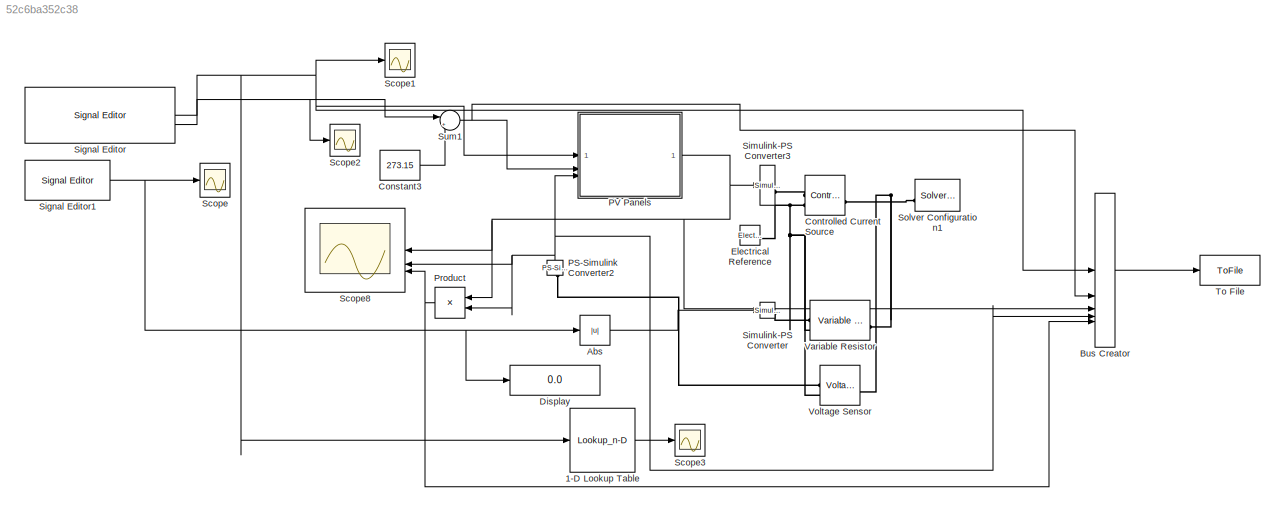
MODEL slx_52c6ba352c38
KIND model
CONFIG AbsTol = auto
CONFIG EnableMultiTasking = off
CONFIG FixedStep = auto
CONFIG MaxStep = auto
CONFIG MinStep = auto
CONFIG RelTol = 1e-3
CONFIG SampleTimeConstraint = Unconstrained
CONFIG SolverName = VariableStepAuto
CONFIG StartTime = 0.0
CONFIG StopTime = 200
BLOCK [Lookup_n-D] 1-D Lookup Table
  BreakpointsForDimension1 = [DataOutS4.Irrad]
  Commented = on
  InputPortMap = u0
  InternalRulePriority = Speed
  NumberOfTableDimensions = 1
  RndMeth = Simplest
  Table = [DataOutS4.Resistance]
BLOCK [Abs] Abs
  SaturateOnIntegerOverflow = off
BLOCK [BusCreator] Bus Creator
  DisplayOption = bar
  InheritFromInputs = on
  Inputs = 5
BLOCK [Constant] Constant3
  Value = 273.15
BLOCK [Reference] Controlled Current Source  REF=fl_lib/Electrical/Electrical Sources/Controlled Current
Source
  SourceBlock = fl_lib/Electrical/Electrical Sources/Controlled Current\nSource
  SourceType = Controlled Current\nSource
BLOCK [Display] Display
  Decimation = 1
BLOCK [Reference] Electrical Reference  REF=fl_lib/Electrical/Electrical Elements/Electrical Reference
  LibrarySourceBlock = ee_lib/Connectors &\nReferences/Electrical Reference
  SourceBlock = fl_lib/Electrical/Electrical Elements/Electrical Reference
  SourceType = Electrical Reference
BLOCK [Reference] PS-Simulink Converter2  REF=nesl_utility/PS-Simulink
Converter
  NameLocation = right
  SourceBlock = nesl_utility/PS-Simulink\nConverter
  SourceType = PS-Simulink\nConverter
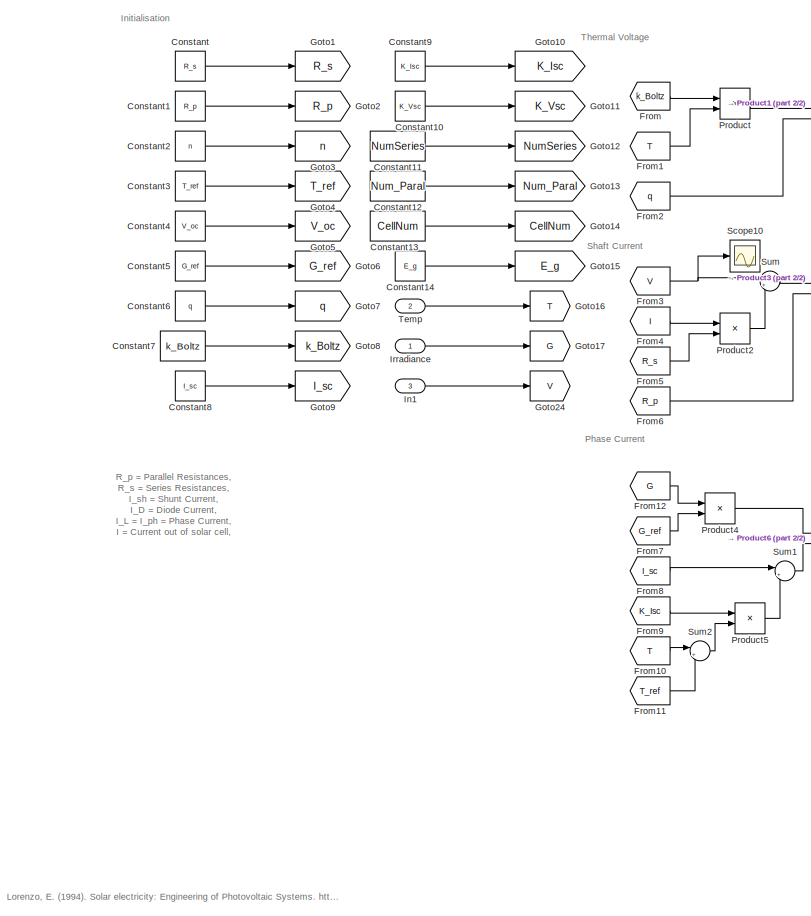
[diagram: PV Panels - part 1/2, left side, full height]
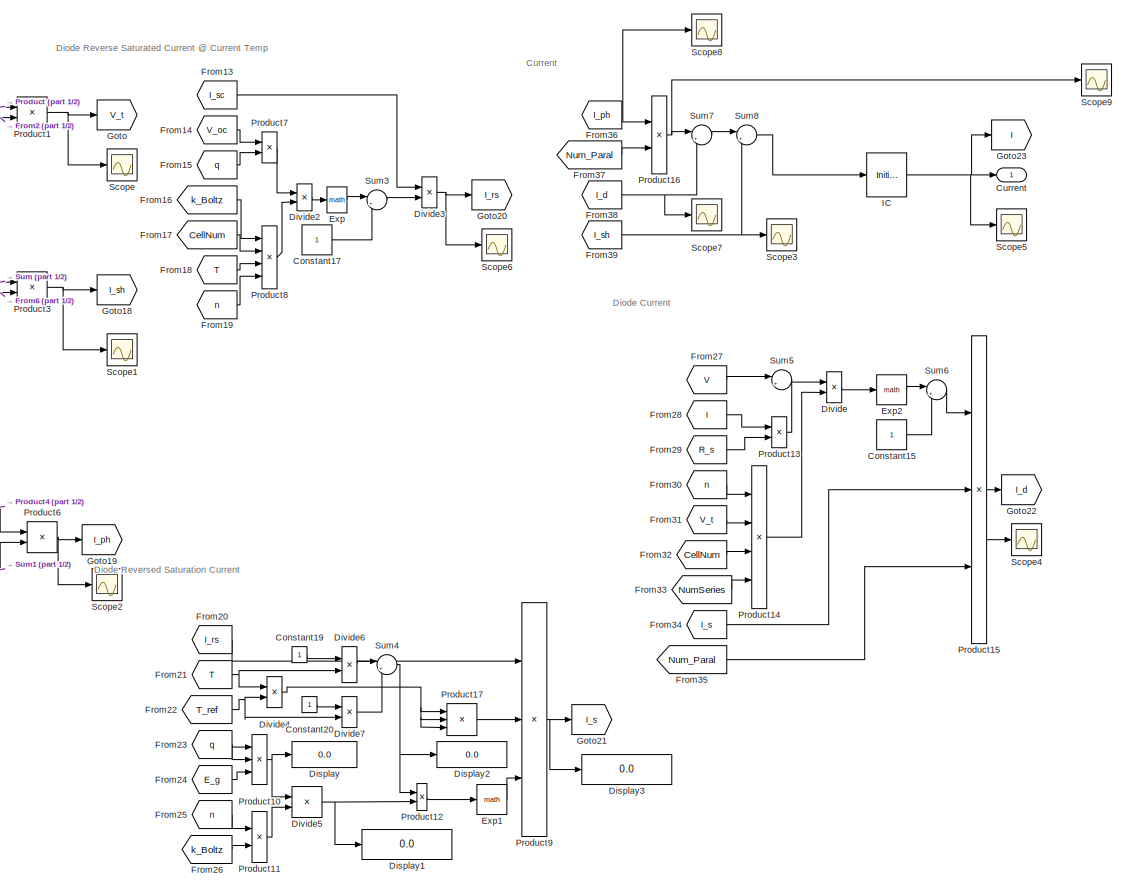
[diagram: PV Panels - part 2/2, right side, full height]
BLOCK [SubSystem] PV Panels
BLOCK [Constant] PV Panels/Constant
  Value = R_s
BLOCK [Constant] PV Panels/Constant1
  Value = R_p
BLOCK [Constant] PV Panels/Constant10
  Value = K_Vsc
BLOCK [Constant] PV Panels/Constant11
  Value = NumSeries
BLOCK [Constant] PV Panels/Constant12
  Value = Num_Paral
BLOCK [Constant] PV Panels/Constant13
  Value = CellNum
BLOCK [Constant] PV Panels/Constant14
  Value = E_g
BLOCK [Constant] PV Panels/Constant15
BLOCK [Constant] PV Panels/Constant17
BLOCK [Constant] PV Panels/Constant19
BLOCK [Constant] PV Panels/Constant2
  Value = n
BLOCK [Constant] PV Panels/Constant20
BLOCK [Constant] PV Panels/Constant3
  Value = T_ref
BLOCK [Constant] PV Panels/Constant4
  Value = V_oc
BLOCK [Constant] PV Panels/Constant5
  Value = G_ref
BLOCK [Constant] PV Panels/Constant6
  Value = q
BLOCK [Constant] PV Panels/Constant7
  Value = k_Boltz
BLOCK [Constant] PV Panels/Constant8
  Value = I_sc
BLOCK [Constant] PV Panels/Constant9
  Value = K_Isc
BLOCK [Outport] PV Panels/Current
BLOCK [Display] PV Panels/Display
  Decimation = 1
BLOCK [Display] PV Panels/Display1
  Decimation = 1
BLOCK [Display] PV Panels/Display2
  Decimation = 1
BLOCK [Display] PV Panels/Display3
  Decimation = 1
BLOCK [Product] PV Panels/Divide
  Inputs = */
BLOCK [Product] PV Panels/Divide2
  Inputs = */
BLOCK [Product] PV Panels/Divide3
  Inputs = */
BLOCK [Product] PV Panels/Divide4
  Inputs = */
BLOCK [Product] PV Panels/Divide5
  Inputs = */
BLOCK [Product] PV Panels/Divide6
  Inputs = */
BLOCK [Product] PV Panels/Divide7
  Inputs = */
BLOCK [Math] PV Panels/Exp
BLOCK [Math] PV Panels/Exp1
BLOCK [Math] PV Panels/Exp2
BLOCK [From] PV Panels/From
  GotoTag = k_Boltz
BLOCK [From] PV Panels/From1
  GotoTag = T
BLOCK [From] PV Panels/From10
  GotoTag = T
BLOCK [From] PV Panels/From11
  GotoTag = T_ref
BLOCK [From] PV Panels/From12
  GotoTag = G
BLOCK [From] PV Panels/From13
  GotoTag = I_sc
BLOCK [From] PV Panels/From14
  GotoTag = V_oc
BLOCK [From] PV Panels/From15
  GotoTag = q
BLOCK [From] PV Panels/From16
  GotoTag = k_Boltz
BLOCK [From] PV Panels/From17
  GotoTag = CellNum
BLOCK [From] PV Panels/From18
  GotoTag = T
BLOCK [From] PV Panels/From19
  GotoTag = n
BLOCK [From] PV Panels/From2
  GotoTag = q
BLOCK [From] PV Panels/From20
  GotoTag = I_rs
BLOCK [From] PV Panels/From21
  GotoTag = T
BLOCK [From] PV Panels/From22
  GotoTag = T_ref
BLOCK [From] PV Panels/From23
  GotoTag = q
BLOCK [From] PV Panels/From24
  GotoTag = E_g
BLOCK [From] PV Panels/From25
  GotoTag = n
BLOCK [From] PV Panels/From26
  GotoTag = k_Boltz
BLOCK [From] PV Panels/From27
  GotoTag = V
BLOCK [From] PV Panels/From28
  GotoTag = I
BLOCK [From] PV Panels/From29
  GotoTag = R_s
BLOCK [From] PV Panels/From3
  GotoTag = V
BLOCK [From] PV Panels/From30
  GotoTag = n
BLOCK [From] PV Panels/From31
  GotoTag = V_t
BLOCK [From] PV Panels/From32
  GotoTag = CellNum
BLOCK [From] PV Panels/From33
  GotoTag = NumSeries
BLOCK [From] PV Panels/From34
  GotoTag = I_s
BLOCK [From] PV Panels/From35
  GotoTag = Num_Paral
BLOCK [From] PV Panels/From36
  GotoTag = I_ph
BLOCK [From] PV Panels/From37
  GotoTag = Num_Paral
BLOCK [From] PV Panels/From38
  GotoTag = I_d
BLOCK [From] PV Panels/From39
  GotoTag = I_sh
BLOCK [From] PV Panels/From4
  GotoTag = I
BLOCK [From] PV Panels/From5
  GotoTag = R_s
BLOCK [From] PV Panels/From6
  GotoTag = R_p
BLOCK [From] PV Panels/From7
  GotoTag = G_ref
BLOCK [From] PV Panels/From8
  GotoTag = I_sc
BLOCK [From] PV Panels/From9
  GotoTag = K_Isc
BLOCK [Goto] PV Panels/Goto
  GotoTag = V_t
BLOCK [Goto] PV Panels/Goto1
  GotoTag = R_s
BLOCK [Goto] PV Panels/Goto10
  GotoTag = K_Isc
BLOCK [Goto] PV Panels/Goto11
  GotoTag = K_Vsc
BLOCK [Goto] PV Panels/Goto12
  GotoTag = NumSeries
BLOCK [Goto] PV Panels/Goto13
  GotoTag = Num_Paral
BLOCK [Goto] PV Panels/Goto14
  GotoTag = CellNum
BLOCK [Goto] PV Panels/Goto15
  GotoTag = E_g
BLOCK [Goto] PV Panels/Goto16
  GotoTag = T
BLOCK [Goto] PV Panels/Goto17
  GotoTag = G
BLOCK [Goto] PV Panels/Goto18
  GotoTag = I_sh
BLOCK [Goto] PV Panels/Goto19
  GotoTag = I_ph
BLOCK [Goto] PV Panels/Goto2
  GotoTag = R_p
BLOCK [Goto] PV Panels/Goto20
  GotoTag = I_rs
BLOCK [Goto] PV Panels/Goto21
  GotoTag = I_s
BLOCK [Goto] PV Panels/Goto22
  GotoTag = I_d
BLOCK [Goto] PV Panels/Goto23
  GotoTag = I
BLOCK [Goto] PV Panels/Goto24
  GotoTag = V
BLOCK [Goto] PV Panels/Goto3
  GotoTag = n
BLOCK [Goto] PV Panels/Goto4
  GotoTag = T_ref
BLOCK [Goto] PV Panels/Goto5
  GotoTag = V_oc
BLOCK [Goto] PV Panels/Goto6
  GotoTag = G_ref
BLOCK [Goto] PV Panels/Goto7
  GotoTag = q
BLOCK [Goto] PV Panels/Goto8
  GotoTag = k_Boltz
BLOCK [Goto] PV Panels/Goto9
  GotoTag = I_sc
BLOCK [InitialCondition] PV Panels/IC
  Value = 0
BLOCK [Inport] PV Panels/In1
  Port = 3
BLOCK [Inport] PV Panels/Irradiance
BLOCK [Product] PV Panels/Product
BLOCK [Product] PV Panels/Product1
  Inputs = */
BLOCK [Product] PV Panels/Product10
  Inputs = 3
BLOCK [Product] PV Panels/Product11
BLOCK [Product] PV Panels/Product12
BLOCK [Product] PV Panels/Product13
BLOCK [Product] PV Panels/Product14
  Inputs = 4
BLOCK [Product] PV Panels/Product15
  Inputs = 3
BLOCK [Product] PV Panels/Product16
BLOCK [Product] PV Panels/Product17
  Inputs = 3
BLOCK [Product] PV Panels/Product2
BLOCK [Product] PV Panels/Product3
  Inputs = */
BLOCK [Product] PV Panels/Product4
  Inputs = */
BLOCK [Product] PV Panels/Product5
BLOCK [Product] PV Panels/Product6
BLOCK [Product] PV Panels/Product7
BLOCK [Product] PV Panels/Product8
  Inputs = 4
BLOCK [Product] PV Panels/Product9
  Inputs = 3
BLOCK [Scope] PV Panels/Scope
  Floating = off
  NumInputPorts = 1
  ScopeSpecificationString = Simulink.scopes.TimeScopeBlockCfg('CurrentConfiguration', extmgr.ConfigurationSet(extmgr.Configuration('Core','General UI',true),extmgr.Configuration('Core','Source UI',true),extmgr.Configuration('Sources','WiredSimulink',true,'DataLoggingVariableName','ScopeData1'),extmgr.Configuration('Visuals','Time Domain',true,'SerializedDisplays',{struct('MinYLimReal','0.01569','MaxYLimReal','0.03569','YLabe...<+1489ch>
BLOCK [Scope] PV Panels/Scope1
  Floating = off
  NumInputPorts = 1
  ScopeSpecificationString = Simulink.scopes.TimeScopeBlockCfg('CurrentConfiguration', extmgr.ConfigurationSet(extmgr.Configuration('Core','General UI',true),extmgr.Configuration('Core','Source UI',true),extmgr.Configuration('Sources','WiredSimulink',true,'DataLoggingVariableName','ScopeData2'),extmgr.Configuration('Visuals','Time Domain',true,'SerializedDisplays',{struct('MinYLimReal','-0.05053','MaxYLimReal','0.51517','YLab...<+1456ch>
BLOCK [Scope] PV Panels/Scope10
  Floating = off
  NumInputPorts = 1
  ScopeSpecificationString = Simulink.scopes.TimeScopeBlockCfg('CurrentConfiguration', extmgr.ConfigurationSet(extmgr.Configuration('Core','General UI',true),extmgr.Configuration('Core','Source UI',true),extmgr.Configuration('Sources','WiredSimulink',true,'DataLoggingVariableName','ScopeData5'),extmgr.Configuration('Visuals','Time Domain',true,'SerializedDisplays',{struct('MinYLimReal','-4.25103','MaxYLimReal','38.2593','YLab...<+1480ch>
BLOCK [Scope] PV Panels/Scope2
  Floating = off
  NumInputPorts = 1
  ScopeSpecificationString = Simulink.scopes.TimeScopeBlockCfg('CurrentConfiguration', extmgr.ConfigurationSet(extmgr.Configuration('Core','General UI',true),extmgr.Configuration('Core','Source UI',true),extmgr.Configuration('Sources','WiredSimulink',true,'DataLoggingVariableName','ScopeData3'),extmgr.Configuration('Visuals','Time Domain',true,'SerializedDisplays',{struct('MinYLimReal','2.284','MaxYLimReal','4.284','YLabelRea...<+1473ch>
BLOCK [Scope] PV Panels/Scope3
  Floating = off
  NumInputPorts = 1
  ScopeSpecificationString = Simulink.scopes.TimeScopeBlockCfg('CurrentConfiguration', extmgr.ConfigurationSet(extmgr.Configuration('Core','General UI',true),extmgr.Configuration('Core','Source UI',true),extmgr.Configuration('Sources','WiredSimulink',true,'DataLoggingVariableName','ScopeData1'),extmgr.Configuration('Visuals','Time Domain',true,'SerializedDisplays',{struct('MinYLimReal','-0.03417','MaxYLimReal','0.54556','YLab...<+1486ch>
BLOCK [Scope] PV Panels/Scope4
  Floating = off
  NumInputPorts = 1
  ScopeSpecificationString = Simulink.scopes.TimeScopeBlockCfg('CurrentConfiguration', extmgr.ConfigurationSet(extmgr.Configuration('Core','General UI',true),extmgr.Configuration('Core','Source UI',true),extmgr.Configuration('Sources','WiredSimulink',true,'DataLoggingVariableName','ScopeData5'),extmgr.Configuration('Visuals','Time Domain',true),extmgr.Configuration('Tools','Plot Navigation',true),extmgr.Configuration('Tools',...<+40ch>
BLOCK [Scope] PV Panels/Scope5
  Floating = off
  NumInputPorts = 1
  ScopeSpecificationString = Simulink.scopes.TimeScopeBlockCfg('CurrentConfiguration', extmgr.ConfigurationSet(extmgr.Configuration('Core','General UI',true),extmgr.Configuration('Core','Source UI',true),extmgr.Configuration('Sources','WiredSimulink',true,'DataLoggingVariableName','ScopeData6'),extmgr.Configuration('Visuals','Time Domain',true,'SerializedDisplays',{struct('MinYLimReal','-0.05512','MaxYLimReal','0.9245','YLabe...<+1476ch>
BLOCK [Scope] PV Panels/Scope6
  Floating = off
  NumInputPorts = 1
  ScopeSpecificationString = Simulink.scopes.TimeScopeBlockCfg('CurrentConfiguration', extmgr.ConfigurationSet(extmgr.Configuration('Core','General UI',true),extmgr.Configuration('Core','Source UI',true),extmgr.Configuration('Sources','WiredSimulink',true,'DataLoggingVariableName','ScopeData7'),extmgr.Configuration('Visuals','Time Domain',true,'SerializedDisplays',{struct('MinYLimReal','0.00000000000000084','MaxYLimReal','0.0...<+1584ch>
BLOCK [Scope] PV Panels/Scope7
  Floating = off
  NumInputPorts = 1
  ScopeSpecificationString = Simulink.scopes.TimeScopeBlockCfg('CurrentConfiguration', extmgr.ConfigurationSet(extmgr.Configuration('Core','General UI',true),extmgr.Configuration('Core','Source UI',true),extmgr.Configuration('Sources','WiredSimulink',true,'DataLoggingVariableName','ScopeData2'),extmgr.Configuration('Visuals','Time Domain',true,'SerializedDisplays',{struct('MinYLimReal','-0.34386','MaxYLimReal','3.0947','YLabe...<+1482ch>
BLOCK [Scope] PV Panels/Scope8
  Floating = off
  NumInputPorts = 1
  ScopeSpecificationString = Simulink.scopes.TimeScopeBlockCfg('CurrentConfiguration', extmgr.ConfigurationSet(extmgr.Configuration('Core','General UI',true),extmgr.Configuration('Core','Source UI',true),extmgr.Configuration('Sources','WiredSimulink',true,'DataLoggingVariableName','ScopeData3'),extmgr.Configuration('Visuals','Time Domain',true,'SerializedDisplays',{struct('MinYLimReal','0.73257','MaxYLimReal','0.93257','YLabe...<+1559ch>
BLOCK [Scope] PV Panels/Scope9
  Floating = off
  NumInputPorts = 1
  ScopeSpecificationString = Simulink.scopes.TimeScopeBlockCfg('CurrentConfiguration', extmgr.ConfigurationSet(extmgr.Configuration('Core','General UI',true),extmgr.Configuration('Core','Source UI',true),extmgr.Configuration('Sources','WiredSimulink',true,'DataLoggingVariableName','ScopeData4'),extmgr.Configuration('Visuals','Time Domain',true,'SerializedDisplays',{struct('MinYLimReal','0.73257','MaxYLimReal','0.93257','YLabe...<+1490ch>
BLOCK [Sum] PV Panels/Sum
  Inputs = |++
BLOCK [Sum] PV Panels/Sum1
  Inputs = |++
BLOCK [Sum] PV Panels/Sum2
  Inputs = |+-
BLOCK [Sum] PV Panels/Sum3
  Inputs = |+-
BLOCK [Sum] PV Panels/Sum4
  Inputs = |+-
BLOCK [Sum] PV Panels/Sum5
  Inputs = |++
BLOCK [Sum] PV Panels/Sum6
  Inputs = |+-
BLOCK [Sum] PV Panels/Sum7
  Inputs = |+-
BLOCK [Sum] PV Panels/Sum8
  Inputs = |+-
BLOCK [Inport] PV Panels/Temp
  Port = 2
BLOCK [Product] Product
BLOCK [Scope] Scope
  Floating = off
  NumInputPorts = 1
  ScopeSpecificationString = Simulink.scopes.TimeScopeBlockCfg('CurrentConfiguration', extmgr.ConfigurationSet(extmgr.Configuration('Core','General UI',true),extmgr.Configuration('Core','Source UI',true),extmgr.Configuration('Sources','WiredSimulink',true,'DataLoggingVariableName','ScopeData1'),extmgr.Configuration('Visuals','Time Domain',true,'SerializedDisplays',{struct('MinYLimReal','-0.0000000000000004','MaxYLimReal','0.0...<+1651ch>
BLOCK [Scope] Scope1
  Floating = off
  NumInputPorts = 1
  ScopeSpecificationString = Simulink.scopes.TimeScopeBlockCfg('CurrentConfiguration', extmgr.ConfigurationSet(extmgr.Configuration('Core','General UI',true),extmgr.Configuration('Core','Source UI',true),extmgr.Configuration('Sources','WiredSimulink',true,'DataLoggingVariableName','ScopeData2'),extmgr.Configuration('Visuals','Time Domain',true,'SerializedDisplays',{struct('MinYLimReal','-750.00000','MaxYLimReal','6750.00000',...<+1906ch>
BLOCK [Scope] Scope2
  Floating = off
  NumInputPorts = 1
  ScopeSpecificationString = Simulink.scopes.TimeScopeBlockCfg('CurrentConfiguration', extmgr.ConfigurationSet(extmgr.Configuration('Core','General UI',true),extmgr.Configuration('Core','Source UI',true),extmgr.Configuration('Sources','WiredSimulink',true,'DataLoggingVariableName','ScopeData3'),extmgr.Configuration('Visuals','Time Domain',true,'SerializedDisplays',{struct('MinYLimReal','-6.875','MaxYLimReal','61.875','YLabelR...<+1563ch>
BLOCK [Scope] Scope3
  Commented = on
  Floating = off
  NumInputPorts = 1
  ScopeSpecificationString = Simulink.scopes.TimeScopeBlockCfg('CurrentConfiguration', extmgr.ConfigurationSet(extmgr.Configuration('Core','General UI',true),extmgr.Configuration('Core','Source UI',true),extmgr.Configuration('Sources','WiredSimulink',true,'DataLoggingVariableName','ScopeData1'),extmgr.Configuration('Visuals','Time Domain',true,'SerializedDisplays',{struct('MinYLimReal','0.915','MaxYLimReal','1.215','YLabelRea...<+1472ch>
BLOCK [Scope] Scope8
  Floating = off
  NumInputPorts = 3
  ScopeSpecificationString = Simulink.scopes.TimeScopeBlockCfg('CurrentConfiguration', extmgr.ConfigurationSet(extmgr.Configuration('Core','General UI',true),extmgr.Configuration('Core','Source UI',true),extmgr.Configuration('Sources','WiredSimulink',true),extmgr.Configuration('Visuals','Time Domain',true,'SerializedDisplays',{struct('MinYLimReal','-73.63168','MaxYLimReal','662.68508','YLabelReal','','MinYLimMag','0.00000','M...<+1627ch>
BLOCK [Reference] Signal Editor  REF=SignalEditorBlockLib/Signal Editor
  LibrarySourceBlock = simulink/Sources/Signal Editor
  SourceBlock = SignalEditorBlockLib/Signal Editor
  SourceType = SignalEditor
  UserDataPersistent = on
BLOCK [Reference] Signal Editor1  REF=SignalEditorBlockLib/Signal Editor
  LibrarySourceBlock = simulink/Sources/Signal Editor
  SourceBlock = SignalEditorBlockLib/Signal Editor
  SourceType = SignalEditor
  UserDataPersistent = on
BLOCK [Reference] Simulink-PS Converter  REF=nesl_utility/Simulink-PS
Converter
  SourceBlock = nesl_utility/Simulink-PS\nConverter
  SourceType = Simulink-PS\nConverter
BLOCK [Reference] Simulink-PS Converter3  REF=nesl_utility/Simulink-PS
Converter
  SourceBlock = nesl_utility/Simulink-PS\nConverter
  SourceType = Simulink-PS\nConverter
BLOCK [Reference] Solver Configuration1  REF=nesl_utility/Solver
Configuration
  SourceBlock = nesl_utility/Solver\nConfiguration
  SourceType = Solver\nConfiguration
BLOCK [Sum] Sum1
  Inputs = |++
BLOCK [ToFile] To File
  Decimation = 3
  Filename = Output.mat
  SaveFormat = Timeseries
BLOCK [Reference] Variable Resistor  REF=fl_lib/Electrical/Electrical Elements/Variable Resistor
  SourceBlock = fl_lib/Electrical/Electrical Elements/Variable Resistor
  SourceType = Variable Resistor
BLOCK [Reference] Voltage Sensor  REF=fl_lib/Electrical/Electrical Sensors/Voltage Sensor
  SourceBlock = fl_lib/Electrical/Electrical Sensors/Voltage Sensor
  SourceType = Voltage Sensor
ANNOTATION PV Panels: Lorenzo, E. (1994). Solar electricity: Engineering of Photovoltaic Systems . https://books.google.co.uk/books?id=lYc53xZyxZQC
ANNOTATION PV Panels: R_p = Parallel Resistances, R_s = Series Resistances, I_sh = Shunt Current, I_D = Diode Current, I_L = I_ph = Phase Current, I = Current out of solar cell, V = Voltage across cell, G_ref = Reference Irradiance, G = Real/current Irradiance, V_t = Voltage Due to Temperature, k_boltz = boltzman constant 1.38e-23 T_ref = reference Temperature (K) T = Real/Current Temperature (K) q = electron charge co...<+299ch>
ANNOTATION PV Panels: Current
ANNOTATION PV Panels: Diode Current
ANNOTATION PV Panels: Diode Reverse Saturated Current @ Current Temp
ANNOTATION PV Panels: Diode Reversed Saturation Current
ANNOTATION PV Panels: Initialisation
ANNOTATION PV Panels: Phase Current
ANNOTATION PV Panels: Shaft Current
ANNOTATION PV Panels: Thermal Voltage
LINE 1-D Lookup Table:1 -> Scope3:1
LINE Abs:1 -> Simulink-PS Converter:1
LINE Bus Creator:1 -> To File:1
LINE Constant3:1 -> Sum1:2
NET PS-Simulink Converter2:1 -> Bus Creator:4, PV Panels:3, Product:2, Scope8:2
LINE PV Panels/Constant10:1 -> PV Panels/Goto11:1
LINE PV Panels/Constant11:1 -> PV Panels/Goto12:1
LINE PV Panels/Constant12:1 -> PV Panels/Goto13:1
LINE PV Panels/Constant13:1 -> PV Panels/Goto14:1
LINE PV Panels/Constant14:1 -> PV Panels/Goto15:1
LINE PV Panels/Constant15:1 -> PV Panels/Sum6:2
LINE PV Panels/Constant17:1 -> PV Panels/Sum3:2
LINE PV Panels/Constant19:1 -> PV Panels/Divide6:1
LINE PV Panels/Constant1:1 -> PV Panels/Goto2:1
LINE PV Panels/Constant20:1 -> PV Panels/Divide7:1
LINE PV Panels/Constant2:1 -> PV Panels/Goto3:1
LINE PV Panels/Constant3:1 -> PV Panels/Goto4:1
LINE PV Panels/Constant4:1 -> PV Panels/Goto5:1
LINE PV Panels/Constant5:1 -> PV Panels/Goto6:1
LINE PV Panels/Constant6:1 -> PV Panels/Goto7:1
LINE PV Panels/Constant7:1 -> PV Panels/Goto8:1
LINE PV Panels/Constant8:1 -> PV Panels/Goto9:1
LINE PV Panels/Constant9:1 -> PV Panels/Goto10:1
LINE PV Panels/Constant:1 -> PV Panels/Goto1:1
LINE PV Panels/Divide2:1 -> PV Panels/Exp:1
NET PV Panels/Divide3:1 -> PV Panels/Goto20:1, PV Panels/Scope6:1
NET PV Panels/Divide4:1 -> PV Panels/Product17:1, PV Panels/Product17:2, PV Panels/Product17:3
NET PV Panels/Divide5:1 -> PV Panels/Display1:1, PV Panels/Product12:2
LINE PV Panels/Divide6:1 -> PV Panels/Sum4:1
LINE PV Panels/Divide7:1 -> PV Panels/Sum4:2
LINE PV Panels/Divide:1 -> PV Panels/Exp2:1
LINE PV Panels/Exp1:1 -> PV Panels/Product9:3
LINE PV Panels/Exp2:1 -> PV Panels/Sum6:1
LINE PV Panels/Exp:1 -> PV Panels/Sum3:1
LINE PV Panels/From10:1 -> PV Panels/Sum2:1
LINE PV Panels/From11:1 -> PV Panels/Sum2:2
LINE PV Panels/From12:1 -> PV Panels/Product4:1
LINE PV Panels/From13:1 -> PV Panels/Divide3:1
LINE PV Panels/From14:1 -> PV Panels/Product7:1
LINE PV Panels/From15:1 -> PV Panels/Product7:2
LINE PV Panels/From16:1 -> PV Panels/Product8:1
LINE PV Panels/From17:1 -> PV Panels/Product8:2
LINE PV Panels/From18:1 -> PV Panels/Product8:3
LINE PV Panels/From19:1 -> PV Panels/Product8:4
LINE PV Panels/From1:1 -> PV Panels/Product:2
LINE PV Panels/From20:1 -> PV Panels/Product9:1
NET PV Panels/From21:1 -> PV Panels/Divide4:1, PV Panels/Divide6:2
NET PV Panels/From22:1 -> PV Panels/Divide4:2, PV Panels/Divide7:2
NET PV Panels/From23:1 -> PV Panels/Product10:1, PV Panels/Product10:2
LINE PV Panels/From24:1 -> PV Panels/Product10:3
LINE PV Panels/From25:1 -> PV Panels/Product11:1
LINE PV Panels/From26:1 -> PV Panels/Product11:2
LINE PV Panels/From27:1 -> PV Panels/Sum5:1
LINE PV Panels/From28:1 -> PV Panels/Product13:1
LINE PV Panels/From29:1 -> PV Panels/Product13:2
LINE PV Panels/From2:1 -> PV Panels/Product1:2
LINE PV Panels/From30:1 -> PV Panels/Product14:1
LINE PV Panels/From31:1 -> PV Panels/Product14:2
LINE PV Panels/From32:1 -> PV Panels/Product14:3
LINE PV Panels/From33:1 -> PV Panels/Product14:4
LINE PV Panels/From34:1 -> PV Panels/Product15:2
LINE PV Panels/From35:1 -> PV Panels/Product15:3
NET PV Panels/From36:1 -> PV Panels/Product16:1, PV Panels/Scope8:1
LINE PV Panels/From37:1 -> PV Panels/Product16:2
NET PV Panels/From38:1 -> PV Panels/Scope7:1, PV Panels/Sum7:2
NET PV Panels/From39:1 -> PV Panels/Scope3:1, PV Panels/Sum8:2
NET PV Panels/From3:1 -> PV Panels/Scope10:1, PV Panels/Sum:1
LINE PV Panels/From4:1 -> PV Panels/Product2:1
LINE PV Panels/From5:1 -> PV Panels/Product2:2
LINE PV Panels/From6:1 -> PV Panels/Product3:2
LINE PV Panels/From7:1 -> PV Panels/Product4:2
LINE PV Panels/From8:1 -> PV Panels/Sum1:1
LINE PV Panels/From9:1 -> PV Panels/Product5:1
LINE PV Panels/From:1 -> PV Panels/Product:1
NET PV Panels/IC:1 -> PV Panels/Current:1, PV Panels/Goto23:1, PV Panels/Scope5:1
LINE PV Panels/In1:1 -> PV Panels/Goto24:1
LINE PV Panels/Irradiance:1 -> PV Panels/Goto17:1
NET PV Panels/Product10:1 -> PV Panels/Display:1, PV Panels/Divide5:1
LINE PV Panels/Product11:1 -> PV Panels/Divide5:2
LINE PV Panels/Product12:1 -> PV Panels/Exp1:1
LINE PV Panels/Product13:1 -> PV Panels/Sum5:2
LINE PV Panels/Product14:1 -> PV Panels/Divide:2
NET PV Panels/Product15:1 -> PV Panels/Goto22:1, PV Panels/Scope4:1
NET PV Panels/Product16:1 -> PV Panels/Scope9:1, PV Panels/Sum7:1
LINE PV Panels/Product17:1 -> PV Panels/Product9:2
NET PV Panels/Product1:1 -> PV Panels/Goto:1, PV Panels/Scope:1
LINE PV Panels/Product2:1 -> PV Panels/Sum:2
NET PV Panels/Product3:1 -> PV Panels/Goto18:1, PV Panels/Scope1:1
LINE PV Panels/Product4:1 -> PV Panels/Product6:1
LINE PV Panels/Product5:1 -> PV Panels/Sum1:2
NET PV Panels/Product6:1 -> PV Panels/Goto19:1, PV Panels/Scope2:1
LINE PV Panels/Product7:1 -> PV Panels/Divide2:1
LINE PV Panels/Product8:1 -> PV Panels/Divide2:2
NET PV Panels/Product9:1 -> PV Panels/Display3:1, PV Panels/Goto21:1
LINE PV Panels/Product:1 -> PV Panels/Product1:1
LINE PV Panels/Sum1:1 -> PV Panels/Product6:2
LINE PV Panels/Sum2:1 -> PV Panels/Product5:2
LINE PV Panels/Sum3:1 -> PV Panels/Divide3:2
NET PV Panels/Sum4:1 -> PV Panels/Display2:1, PV Panels/Product12:1
LINE PV Panels/Sum5:1 -> PV Panels/Divide:1
LINE PV Panels/Sum6:1 -> PV Panels/Product15:1
LINE PV Panels/Sum7:1 -> PV Panels/Sum8:1
LINE PV Panels/Sum8:1 -> PV Panels/IC:1
LINE PV Panels/Sum:1 -> PV Panels/Product3:1
LINE PV Panels/Temp:1 -> PV Panels/Goto16:1
NET PV Panels:1 -> Bus Creator:3, Product:1, Scope8:1, Simulink-PS Converter3:1
NET Product:1 -> Bus Creator:5, Scope8:3
NET Signal Editor1:1 -> Abs:1, Display:1, Scope:1
NET Signal Editor:1 -> 1-D Lookup Table:1, Bus Creator:1, PV Panels:1, Scope1:1
NET Signal Editor:2 -> Scope2:1, Sum1:1
NET Sum1:1 -> Bus Creator:2, PV Panels:2
PNET net1: Controlled Current Source:LConn1 -- Solver Configuration1:RConn1 -- Variable Resistor:RConn1 -- Voltage Sensor:LConn1
PLINE Controlled Current Source:RConn1 -- Simulink-PS Converter3:RConn1
PNET net2: Controlled Current Source:RConn2 -- Electrical Reference:LConn1 -- Variable Resistor:LConn2 -- Voltage Sensor:RConn2
PLINE PS-Simulink Converter2:LConn1 -- Voltage Sensor:RConn1
PLINE Simulink-PS Converter:RConn1 -- Variable Resistor:LConn1
note: NET lines group one-source signal fan-out (src -> all destinations, sorted); 1:1 wires keep LINE; PNET lines group multi-terminal physical nets as a canonical sorted terminal list (undirected conserving connections); 2-terminal nets keep the pairwise PLINE form
